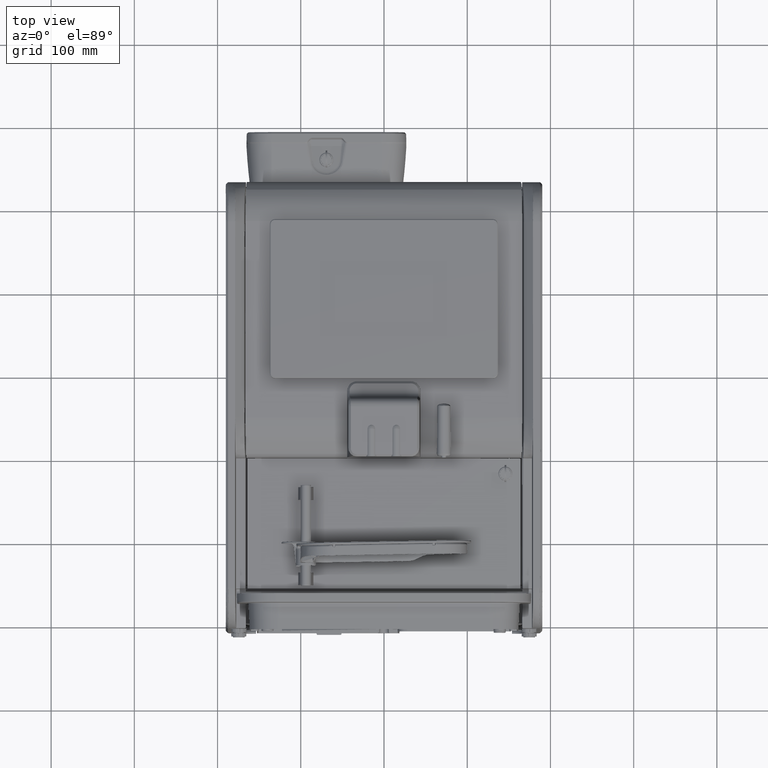
[diagram: clean part render]
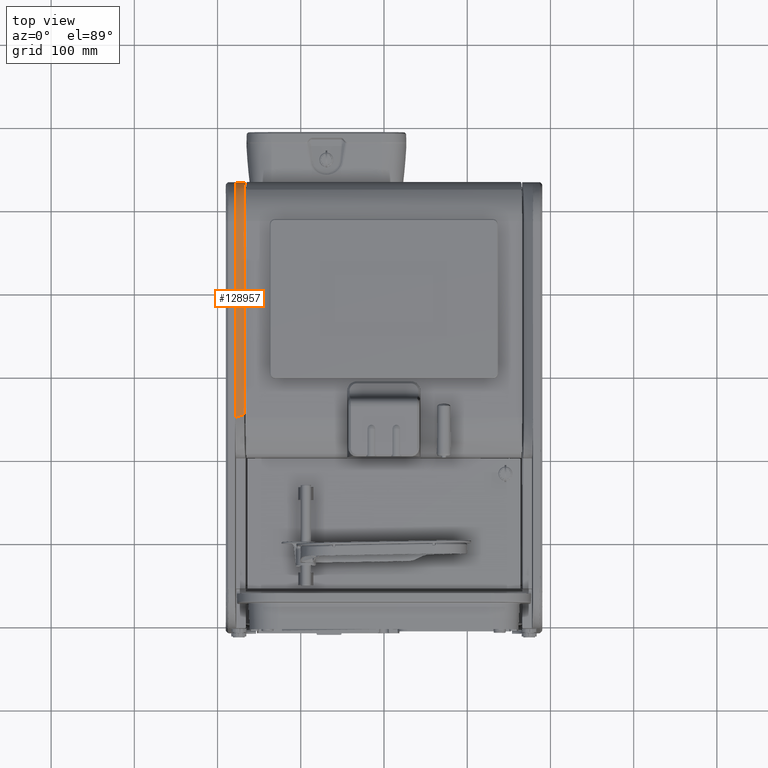
[diagram: same view with one face highlighted and labeled with its STEP entity id]
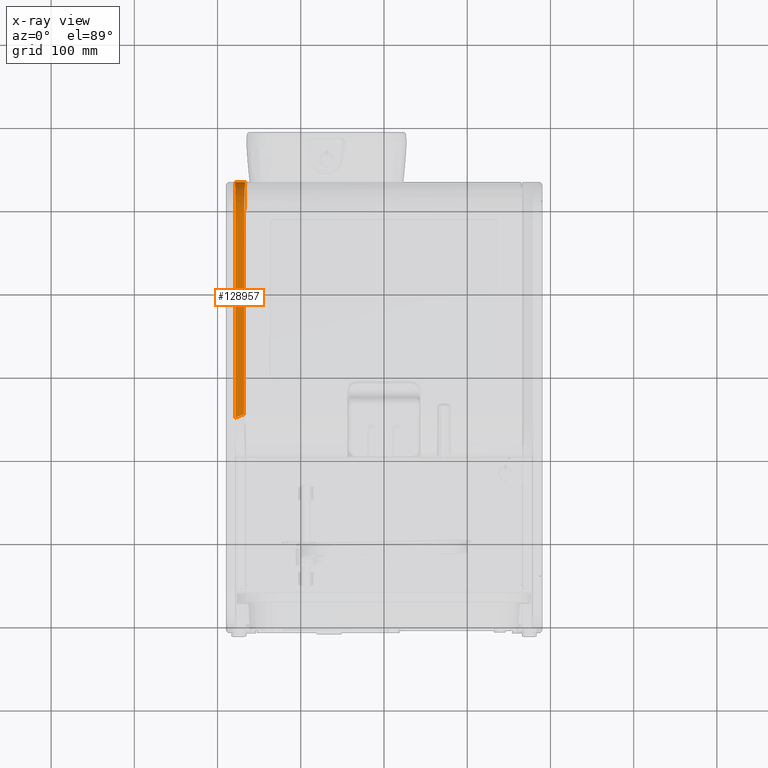
[diagram: x-ray of the same camera — body ghosted, the highlighted face saturated]
A machine part, top view. The second image highlights one B-rep face of the part: STEP entity #128957.
The next image is the same camera in x-ray: the body ghosted, the highlighted face saturated — about 0% of this face is hidden behind the body in this view.
In plain terms, the highlighted face is a freeform B-spline surface patch.
Its self-contained STEP definition (entity closure, byte-faithful):
#1035=B_SPLINE_SURFACE_WITH_KNOTS('',3,3,((#228662,#228663,#228664,#228665),
(#228666,#228667,#228668,#228669),(#228670,#228671,#228672,#228673),(#228674,
#228675,#228676,#228677),(#228678,#228679,#228680,#228681),(#228682,#228683,
#228684,#228685),(#228686,#228687,#228688,#228689),(#228690,#228691,#228692,
#228693),(#228694,#228695,#228696,#228697),(#228698,#228699,#228700,#228701),
(#228702,#228703,#228704,#228705),(#228706,#228707,#228708,#228709),(#228710,
#228711,#228712,#228713),(#228714,#228715,#228716,#228717),(#228718,#228719,
#228720,#228721),(#228722,#228723,#228724,#228725),(#228726,#228727,#228728,
#228729),(#228730,#228731,#228732,#228733),(#228734,#228735,#228736,#228737),
(#228738,#228739,#228740,#228741),(#228742,#228743,#228744,#228745)),
 .UNSPECIFIED.,.F.,.F.,.F.,(4,2,2,1,1,2,1,2,1,2,2,1,4),(4,4),(0.,0.00640979767275628,
0.00664625702827166,0.0475756343841297,0.0680403230620588,0.0885050117399878,
0.124391325861218,0.160277639982448,0.19466016174921,0.229042683515971,
0.24057875505389,0.620289377526945,1.),(0.0130425290265558,1.),
 .UNSPECIFIED.);
#3684=B_SPLINE_CURVE_WITH_KNOTS('',3,(#224887,#224888,#224889,#224890,#224891,
#224892,#224893),.UNSPECIFIED.,.F.,.F.,(4,3,4),(0.,0.5,0.999999999999467),
 .UNSPECIFIED.);
#3729=B_SPLINE_CURVE_WITH_KNOTS('',3,(#227127,#227128,#227129,#227130,#227131,
#227132,#227133,#227134,#227135,#227136,#227137,#227138,#227139,#227140,
#227141,#227142,#227143,#227144,#227145,#227146,#227147,#227148,#227149,
#227150,#227151,#227152,#227153,#227154,#227155,#227156,#227157,#227158,
#227159,#227160,#227161,#227162),.UNSPECIFIED.,.F.,.F.,(4,1,1,1,1,1,1,1,
1,1,1,1,1,1,1,1,1,1,1,1,1,1,1,1,1,1,1,1,1,1,1,1,1,4),(-23.5470437532574,
-22.3698930081718,-21.1927422630862,-20.0155915180006,-18.8384407729149,
-17.6612900278293,-16.4841392827437,-15.306988537658,-14.1298377925724,
-13.5412624200296,-12.9526870474868,-12.364111674944,-11.7755363024012,
-11.1869609298583,-10.5983855573155,-10.0098101847727,-9.42123481222989,
-8.83265943968708,-8.24408406714426,-7.65550869460145,-7.06693332205863,
-6.47835794951582,-5.889782576973,-5.30120720443019,-4.71263183188737,-4.12405645934456,
-3.53548108680174,-2.94690571425893,-2.35833034171611,-1.7697549691733,
-1.18117959663048,-0.592604224087667,-0.29831653781626,-0.00402896391941721),
 .UNSPECIFIED.);
#3730=B_SPLINE_CURVE_WITH_KNOTS('',3,(#227164,#227165,#227166,#227167,#227168,
#227169),.UNSPECIFIED.,.F.,.F.,(4,2,4),(-0.00402896391941721,-0.00402885154485234,
0.),.UNSPECIFIED.);
#3733=B_SPLINE_CURVE_WITH_KNOTS('',3,(#227427,#227428,#227429,#227430),
 .UNSPECIFIED.,.F.,.F.,(4,4),(-29.9484850807096,-29.7553266588214),
 .UNSPECIFIED.);
#3734=B_SPLINE_CURVE_WITH_KNOTS('',3,(#227432,#227433,#227434,#227435,#227436,
#227437),.UNSPECIFIED.,.F.,.F.,(4,2,4),(-29.7553266588214,-29.7552884234636,
-29.7482023152223),.UNSPECIFIED.);
#3735=B_SPLINE_CURVE_WITH_KNOTS('',3,(#227439,#227440,#227441,#227442,#227443,
#227444,#227445,#227446,#227447,#227448,#227449,#227450,#227451),
 .UNSPECIFIED.,.F.,.F.,(4,2,1,1,1,1,1,2,4),(-29.7482023152223,-29.7481639394166,
-29.4495624080321,-29.1509608766476,-28.8523593452632,-28.5537578138787,
-27.9565547511097,-27.3593516883408,-27.3590389645918),.UNSPECIFIED.);
#3736=B_SPLINE_CURVE_WITH_KNOTS('',3,(#227453,#227454,#227455,#227456,#227457,
#227458,#227459,#227460,#227461,#227462,#227463,#227464),.UNSPECIFIED.,
 .F.,.F.,(4,1,1,1,2,1,2,4),(-27.3590389645918,-26.8269412955744,-26.2945309028081,
-25.7621205100418,-25.2297101172754,-24.2090213257002,-23.1883325341249,
-23.1880105102883),.UNSPECIFIED.);
#3737=B_SPLINE_CURVE_WITH_KNOTS('',3,(#227466,#227467,#227468,#227469,#227470,
#227471),.UNSPECIFIED.,.F.,.F.,(4,2,4),(-23.1880105102883,-22.8446237925314,
-22.8444707547014),.UNSPECIFIED.);
#3738=B_SPLINE_CURVE_WITH_KNOTS('',3,(#227472,#227473,#227474,#227475,#227476,
#227477,#227478,#227479,#227480,#227481,#227482,#227483,#227484),
 .UNSPECIFIED.,.F.,.F.,(4,1,1,1,1,1,1,1,1,1,4),(-22.8444707547014,-21.4168348054981,
-19.9890458184649,-17.1334678443985,-15.7056788573653,-14.2778898703321,
-11.4223118962657,-8.56673392219925,-5.71115594813283,-2.85557797406642,
2.66496083731959E-15),.UNSPECIFIED.);
#3763=B_SPLINE_CURVE_WITH_KNOTS('',3,(#228748,#228749,#228750,#228751,#228752,
#228753,#228754,#228755,#228756,#228757,#228758,#228759,#228760,#228761,
#228762,#228763,#228764,#228765,#228766,#228767,#228768),.UNSPECIFIED.,
 .F.,.F.,(4,2,3,2,2,2,2,2,2,4),(-0.019908409667003,0.0398143192698491,0.0796336385396981,
0.129406829953857,0.154293425660937,0.166736723514476,0.175227518406058,
0.177203769887037,0.178191895627526,0.179175682312666),.UNSPECIFIED.);
#3764=B_SPLINE_CURVE_WITH_KNOTS('',3,(#228770,#228771,#228772,#228773,#228774,
#228775,#228776,#228777,#228778,#228779,#228780,#228781,#228782),
 .UNSPECIFIED.,.F.,.F.,(4,2,1,1,1,1,1,2,4),(-2.52953599760719,-2.52953324064174,
-2.02362659251339,-1.51771994438505,-1.26476662032087,-1.0118132962567,
-0.505906648128348,0.,0.09217482785171),.UNSPECIFIED.);
#3765=B_SPLINE_CURVE_WITH_KNOTS('',3,(#228784,#228785,#228786,#228787,#228788,
#228789,#228790,#228791,#228792,#228793),.UNSPECIFIED.,.F.,.F.,(4,2,1,1,
1,1,4),(-4.81362181208809,-4.81362166799849,-4.48732332123324,-4.16102497446799,
-3.83472662770274,-3.18212993417224,-2.52953599760719),.UNSPECIFIED.);
#3766=B_SPLINE_CURVE_WITH_KNOTS('',3,(#228795,#228796,#228797,#228798,#228799,
#228800,#228801,#228802,#228803,#228804,#228805,#228806,#228807),
 .UNSPECIFIED.,.F.,.F.,(4,2,1,1,1,1,1,2,4),(-6.9212356305075,-6.92123245339372,
-6.62035380637753,-6.01859651234513,-5.86815718883703,-5.71771786532893,
-5.41683921831273,-4.81508192428034,-4.8136218120881),.UNSPECIFIED.);
#3767=B_SPLINE_CURVE_WITH_KNOTS('',3,(#228808,#228809,#228810,#228811,#228812),
 .UNSPECIFIED.,.F.,.F.,(4,1,4),(-7.27096029927227,-7.12107693675289,-6.9212356305075),
 .UNSPECIFIED.);
#24726=FACE_OUTER_BOUND('',#30696,.T.);
#30696=EDGE_LOOP('',(#105980,#105981,#105982,#105983,#105984,#105985,#105986,
#105987,#105988,#105989,#105990,#105991,#105992,#105993,#105994,#105995));
#38682=LINE('',#227614,#48541);
#38746=LINE('',#228813,#48605);
#48541=VECTOR('',#158158,15.803879667573);
#48605=VECTOR('',#158296,10.);
#59977=VERTEX_POINT('',#224851);
#59978=VERTEX_POINT('',#224886);
#60144=VERTEX_POINT('',#227126);
#60145=VERTEX_POINT('',#227163);
#60147=VERTEX_POINT('',#227380);
#60148=VERTEX_POINT('',#227382);
#60149=VERTEX_POINT('',#227426);
#60150=VERTEX_POINT('',#227431);
#60151=VERTEX_POINT('',#227438);
#60152=VERTEX_POINT('',#227452);
#60153=VERTEX_POINT('',#227465);
#60229=VERTEX_POINT('',#228746);
#60230=VERTEX_POINT('',#228747);
#60231=VERTEX_POINT('',#228769);
#60232=VERTEX_POINT('',#228783);
#60233=VERTEX_POINT('',#228794);
#78274=EDGE_CURVE('',#59977,#59978,#3684,.T.);
#78467=EDGE_CURVE('',#59978,#60144,#3729,.T.);
#78468=EDGE_CURVE('',#60144,#60145,#3730,.T.);
#78473=EDGE_CURVE('',#60148,#60149,#3733,.T.);
#78474=EDGE_CURVE('',#60149,#60150,#3734,.T.);
#78475=EDGE_CURVE('',#60150,#60151,#3735,.T.);
#78476=EDGE_CURVE('',#60151,#60152,#3736,.T.);
#78477=EDGE_CURVE('',#60152,#60153,#3737,.T.);
#78478=EDGE_CURVE('',#60153,#60147,#3738,.T.);
#78485=EDGE_CURVE('',#60147,#59977,#38682,.T.);
#78590=EDGE_CURVE('',#60229,#60230,#3763,.T.);
#78591=EDGE_CURVE('',#60231,#60230,#3764,.T.);
#78592=EDGE_CURVE('',#60232,#60231,#3765,.T.);
#78593=EDGE_CURVE('',#60233,#60232,#3766,.T.);
#78594=EDGE_CURVE('',#60145,#60233,#3767,.T.);
#78595=EDGE_CURVE('',#60148,#60229,#38746,.T.);
#105980=ORIENTED_EDGE('',*,*,#78590,.T.);
#105981=ORIENTED_EDGE('',*,*,#78591,.F.);
#105982=ORIENTED_EDGE('',*,*,#78592,.F.);
#105983=ORIENTED_EDGE('',*,*,#78593,.F.);
#105984=ORIENTED_EDGE('',*,*,#78594,.F.);
#105985=ORIENTED_EDGE('',*,*,#78468,.F.);
#105986=ORIENTED_EDGE('',*,*,#78467,.F.);
#105987=ORIENTED_EDGE('',*,*,#78274,.F.);
#105988=ORIENTED_EDGE('',*,*,#78485,.F.);
#105989=ORIENTED_EDGE('',*,*,#78478,.F.);
#105990=ORIENTED_EDGE('',*,*,#78477,.F.);
#105991=ORIENTED_EDGE('',*,*,#78476,.F.);
#105992=ORIENTED_EDGE('',*,*,#78475,.F.);
#105993=ORIENTED_EDGE('',*,*,#78474,.F.);
#105994=ORIENTED_EDGE('',*,*,#78473,.F.);
#105995=ORIENTED_EDGE('',*,*,#78595,.T.);
#128957=ADVANCED_FACE('',(#24726),#1035,.F.);
#158158=DIRECTION('',(-0.691562996134251,-0.283406433371221,0.664395526701996));
#158296=DIRECTION('',(-1.,1.42152762704414E-14,1.77608424315041E-14));
#224851=CARTESIAN_POINT('',(-178.704057109713,244.788232730246,215.869631593567));
#224886=CARTESIAN_POINT('',(-178.704863108679,245.129227528072,215.870405929542));
#224887=CARTESIAN_POINT('Ctrl Pts',(-178.704057109713,244.788232730246,
215.869631593567));
#224888=CARTESIAN_POINT('Ctrl Pts',(-178.704144375693,244.804885353529,
215.869715431346));
#224889=CARTESIAN_POINT('Ctrl Pts',(-178.704479359027,244.889346295681,
215.870037254946));
#224890=CARTESIAN_POINT('Ctrl Pts',(-178.704638032335,244.958729121707,
215.870189694582));
#224891=CARTESIAN_POINT('Ctrl Pts',(-178.704796705642,245.028111947734,
215.870342134218));
#224892=CARTESIAN_POINT('Ctrl Pts',(-178.704863108671,245.112574467406,
215.870405928069));
#224893=CARTESIAN_POINT('Ctrl Pts',(-178.70486310867,245.12922753061,215.870405927943));
#227126=CARTESIAN_POINT('',(-178.704863108675,480.559376547243,215.870405929545));
#227127=CARTESIAN_POINT('Ctrl Pts',(-178.704863108679,245.129227528072,
215.870405929543));
#227128=CARTESIAN_POINT('Ctrl Pts',(-178.704863108679,249.053063345024,
215.870405929543));
#227129=CARTESIAN_POINT('Ctrl Pts',(-178.704863108678,256.900734978936,
215.870405929542));
#227130=CARTESIAN_POINT('Ctrl Pts',(-178.704863108687,268.672242429728,
215.870405929551));
#227131=CARTESIAN_POINT('Ctrl Pts',(-178.70486310868,280.443749880628,215.870405929545));
#227132=CARTESIAN_POINT('Ctrl Pts',(-178.704863108732,292.215257331122,
215.870405929595));
#227133=CARTESIAN_POINT('Ctrl Pts',(-178.704863108736,303.986764781955,
215.870405929598));
#227134=CARTESIAN_POINT('Ctrl Pts',(-178.704863108965,315.758272231221,
215.870405929819));
#227135=CARTESIAN_POINT('Ctrl Pts',(-178.704863109332,327.529779679533,
215.870405930172));
#227136=CARTESIAN_POINT('Ctrl Pts',(-178.704863111142,337.339369209374,
215.870405931911));
#227137=CARTESIAN_POINT('Ctrl Pts',(-178.704863112565,345.187040833422,
215.870405933278));
#227138=CARTESIAN_POINT('Ctrl Pts',(-178.704863114989,351.072794542054,
215.870405935607));
#227139=CARTESIAN_POINT('Ctrl Pts',(-178.704863119276,356.958548237787,
215.870405939726));
#227140=CARTESIAN_POINT('Ctrl Pts',(-178.704863126628,362.844301912277,
215.87040594679));
#227141=CARTESIAN_POINT('Ctrl Pts',(-178.704863139665,368.730055547393,
215.870405959315));
#227142=CARTESIAN_POINT('Ctrl Pts',(-178.704863161254,374.615809123265,
215.870405980055));
#227143=CARTESIAN_POINT('Ctrl Pts',(-178.704863200208,380.501562578836,
215.87040601748));
#227144=CARTESIAN_POINT('Ctrl Pts',(-178.704863262932,386.387315869745,
215.870406077739));
#227145=CARTESIAN_POINT('Ctrl Pts',(-178.704863379915,392.273068784773,
215.870406190127));
#227146=CARTESIAN_POINT('Ctrl Pts',(-178.70486356009,398.158821262035,215.870406363224));
#227147=CARTESIAN_POINT('Ctrl Pts',(-178.704863915469,404.044572525578,
215.870406704642));
#227148=CARTESIAN_POINT('Ctrl Pts',(-178.704864423127,409.930322734198,
215.870407192358));
#227149=CARTESIAN_POINT('Ctrl Pts',(-178.704865522908,415.81606884089,215.870408248935));
#227150=CARTESIAN_POINT('Ctrl Pts',(-178.704866903087,421.701813005122,
215.870409574895));
#227151=CARTESIAN_POINT('Ctrl Pts',(-178.704870403785,427.587542479449,
215.870412938072));
#227152=CARTESIAN_POINT('Ctrl Pts',(-178.704873895883,433.473272013351,
215.870416292986));
#227153=CARTESIAN_POINT('Ctrl Pts',(-178.704885498039,439.358945364786,
215.870427439363));
#227154=CARTESIAN_POINT('Ctrl Pts',(-178.704892935187,445.244647569358,
215.870434584349));
#227155=CARTESIAN_POINT('Ctrl Pts',(-178.704933495144,451.130120315471,
215.870473550947));
#227156=CARTESIAN_POINT('Ctrl Pts',(-178.704941257093,457.015820270032,
215.870481007975));
#227157=CARTESIAN_POINT('Ctrl Pts',(-178.705092365398,462.900527191862,
215.870626180132));
#227158=CARTESIAN_POINT('Ctrl Pts',(-178.705044477665,468.786612660122,
215.870580173624));
#227159=CARTESIAN_POINT('Ctrl Pts',(-178.7055579148,473.68785059264,215.871073440862));
#227160=CARTESIAN_POINT('Ctrl Pts',(-178.705236418162,477.613913205408,
215.870764573918));
#227161=CARTESIAN_POINT('Ctrl Pts',(-178.706103791346,479.569822005912,
215.871597873159));
#227162=CARTESIAN_POINT('Ctrl Pts',(-178.704862946448,480.559376547244,
215.870405773691));
#227163=CARTESIAN_POINT('',(-178.704832200942,480.60002861091,215.87035573248));
#227164=CARTESIAN_POINT('Ctrl Pts',(-178.704862946448,480.559376547244,
215.870405773691));
#227165=CARTESIAN_POINT('Ctrl Pts',(-178.704862945974,480.559376925108,
215.870405773236));
#227166=CARTESIAN_POINT('Ctrl Pts',(-178.7048629455,480.559377302972,215.87040577278));
#227167=CARTESIAN_POINT('Ctrl Pts',(-178.704845957611,480.572924866419,
215.870389452245));
#227168=CARTESIAN_POINT('Ctrl Pts',(-178.704835306301,480.586477995898,
215.870372381563));
#227169=CARTESIAN_POINT('Ctrl Pts',(-178.704832200942,480.60002861091,215.87035573248));
#227380=CARTESIAN_POINT('',(-168.063189334919,249.14892062258,205.64678134085));
#227382=CARTESIAN_POINT('',(-166.349999331759,528.599665057152,166.00000000001));
#227426=CARTESIAN_POINT('',(-166.451074430603,528.549094238294,167.928680734795));
#227427=CARTESIAN_POINT('Ctrl Pts',(-166.349999328262,528.599665060971,
166.000000000293));
#227428=CARTESIAN_POINT('Ctrl Pts',(-166.383683976709,528.582811807863,
166.642764147492));
#227429=CARTESIAN_POINT('Ctrl Pts',(-166.417369030729,528.565967851802,
167.285844166911));
#227430=CARTESIAN_POINT('Ctrl Pts',(-166.451051709688,528.549116382449,
167.928682505761));
#227431=CARTESIAN_POINT('',(-166.454803597735,528.547226511587,167.9998316044));
#227432=CARTESIAN_POINT('Ctrl Pts',(-166.451051709688,528.549116382449,
167.928682505761));
#227433=CARTESIAN_POINT('Ctrl Pts',(-166.451058377113,528.549113046731,
167.928809754439));
#227434=CARTESIAN_POINT('Ctrl Pts',(-166.451065044538,528.549109711013,
167.928937003108));
#227435=CARTESIAN_POINT('Ctrl Pts',(-166.452307376967,528.548488171047,
167.952647077347));
#227436=CARTESIAN_POINT('Ctrl Pts',(-166.453543801787,528.547868626396,
167.976234210158));
#227437=CARTESIAN_POINT('Ctrl Pts',(-166.454780743477,528.547248900224,
167.999833391299));
#227438=CARTESIAN_POINT('',(-167.437832733607,519.161619566678,189.898449273287));
#227439=CARTESIAN_POINT('Ctrl Pts',(-166.454780743477,528.547248900224,
167.999833391299));
#227440=CARTESIAN_POINT('Ctrl Pts',(-166.454787442307,528.54724554401,167.99996119595));
#227441=CARTESIAN_POINT('Ctrl Pts',(-166.454794141152,528.547242187792,
168.000089000954));
#227442=CARTESIAN_POINT('Ctrl Pts',(-166.506924564336,528.521124107549,
168.994668263045));
#227443=CARTESIAN_POINT('Ctrl Pts',(-166.609724637073,528.372248774383,
171.028275608575));
#227444=CARTESIAN_POINT('Ctrl Pts',(-166.758408055662,527.860199820874,
174.04097745219));
#227445=CARTESIAN_POINT('Ctrl Pts',(-166.899164266379,527.062340060623,
177.004894086534));
#227446=CARTESIAN_POINT('Ctrl Pts',(-167.073118444276,525.638144789433,
180.812310772883));
#227447=CARTESIAN_POINT('Ctrl Pts',(-167.263300769845,523.213583515418,
185.275619543512));
#227448=CARTESIAN_POINT('Ctrl Pts',(-167.385412855238,520.59929815328,188.457618935411));
#227449=CARTESIAN_POINT('Ctrl Pts',(-167.438223807283,519.163124905424,
189.896919353846));
#227450=CARTESIAN_POINT('Ctrl Pts',(-167.438251446813,519.162373235928,
189.897672615928));
#227451=CARTESIAN_POINT('Ctrl Pts',(-167.438279086035,519.16162155152,189.898425848833));
#227452=CARTESIAN_POINT('',(-168.06575450433,481.076387628263,205.647143174075));
#227453=CARTESIAN_POINT('Ctrl Pts',(-167.438279086035,519.16162155152,189.898425848833));
#227454=CARTESIAN_POINT('Ctrl Pts',(-167.485307064965,517.882634832968,
191.18004732471));
#227455=CARTESIAN_POINT('Ctrl Pts',(-167.577610680026,515.237537647647,
193.575047962946));
#227456=CARTESIAN_POINT('Ctrl Pts',(-167.703994869288,510.868359548347,
196.793185202379));
#227457=CARTESIAN_POINT('Ctrl Pts',(-167.816229619734,506.198725139299,
199.54835708437));
#227458=CARTESIAN_POINT('Ctrl Pts',(-167.879117167557,502.926261980514,
201.060128934758));
#227459=CARTESIAN_POINT('Ctrl Pts',(-167.960988027286,498.080790989393,
203.011415485934));
#227460=CARTESIAN_POINT('Ctrl Pts',(-168.042231424483,491.498999735271,
204.965003962275));
#227461=CARTESIAN_POINT('Ctrl Pts',(-168.067742343064,484.542851785266,
205.646036037543));
#227462=CARTESIAN_POINT('Ctrl Pts',(-168.065428764704,481.078573222401,
205.647491206893));
#227463=CARTESIAN_POINT('Ctrl Pts',(-168.06542803432,481.077480610663,205.647491664787));
#227464=CARTESIAN_POINT('Ctrl Pts',(-168.065427303251,481.076388010542,
205.647492121622));
#227465=CARTESIAN_POINT('',(-168.063189334916,477.605357238961,205.646781340852));
#227466=CARTESIAN_POINT('Ctrl Pts',(-168.065427303251,481.076388010542,
205.647492121622));
#227467=CARTESIAN_POINT('Ctrl Pts',(-168.064647735177,479.911305408845,
205.647979262385));
#227468=CARTESIAN_POINT('Ctrl Pts',(-168.063088438904,478.759432045042,
205.647261139811));
#227469=CARTESIAN_POINT('Ctrl Pts',(-168.063187551741,477.606384704289,
205.647321194748));
#227470=CARTESIAN_POINT('Ctrl Pts',(-168.063187595885,477.605871052881,
205.647321221493));
#227471=CARTESIAN_POINT('Ctrl Pts',(-168.063187640023,477.605357402009,
205.647321248231));
#227472=CARTESIAN_POINT('Ctrl Pts',(-168.063187640023,477.605357402009,
205.647321248231));
#227473=CARTESIAN_POINT('Ctrl Pts',(-168.063599379383,472.813689543326,
205.647570674316));
#227474=CARTESIAN_POINT('Ctrl Pts',(-168.063113823113,463.322972863929,
205.646744180123));
#227475=CARTESIAN_POINT('Ctrl Pts',(-168.063291188531,444.273980854372,
205.646937880156));
#227476=CARTESIAN_POINT('Ctrl Pts',(-168.06315041314,425.245318613828,205.646725786019));
#227477=CARTESIAN_POINT('Ctrl Pts',(-168.063200627822,406.205016467491,
205.646797938764));
#227478=CARTESIAN_POINT('Ctrl Pts',(-168.063181612448,387.168999876785,
205.646770152215));
#227479=CARTESIAN_POINT('Ctrl Pts',(-168.063193774351,363.371765569001,
205.646787786797));
#227480=CARTESIAN_POINT('Ctrl Pts',(-168.063187177697,334.816393008105,
205.646778209222));
#227481=CARTESIAN_POINT('Ctrl Pts',(-168.063190412022,306.260413616039,
205.646782904521));
#227482=CARTESIAN_POINT('Ctrl Pts',(-168.063188755182,277.704736149467,
205.646780499228));
#227483=CARTESIAN_POINT('Ctrl Pts',(-168.063189334919,258.667513869468,
205.64678134085));
#227484=CARTESIAN_POINT('Ctrl Pts',(-168.063189334919,249.14892062258,205.64678134085));
#227614=CARTESIAN_POINT('',(-167.920621626539,249.20734567709,205.509814284733));
#228662=CARTESIAN_POINT('Ctrl Pts',(-166.019552877333,528.599665057152,
166.00000000001));
#228663=CARTESIAN_POINT('Ctrl Pts',(-170.296368584885,528.599665057152,
166.00000000001));
#228664=CARTESIAN_POINT('Ctrl Pts',(-174.573184292436,528.599665057152,
166.00000000001));
#228665=CARTESIAN_POINT('Ctrl Pts',(-178.849999999988,528.599665057152,
166.00000000001));
#228666=CARTESIAN_POINT('Ctrl Pts',(-166.052763309875,528.58282188791,166.642345037264));
#228667=CARTESIAN_POINT('Ctrl Pts',(-170.318508870881,528.582652925792,
166.649356414026));
#228668=CARTESIAN_POINT('Ctrl Pts',(-174.584254438982,528.582462638874,
166.656374876449));
#228669=CARTESIAN_POINT('Ctrl Pts',(-178.849999999988,528.582293676756,
166.663386253211));
#228670=CARTESIAN_POINT('Ctrl Pts',(-166.085973750198,528.565978906757,
167.284690253638));
#228671=CARTESIAN_POINT('Ctrl Pts',(-170.340649174167,528.565612398326,
167.298722505717));
#228672=CARTESIAN_POINT('Ctrl Pts',(-174.595324576065,528.565285670211,
167.312742662975));
#228673=CARTESIAN_POINT('Ctrl Pts',(-178.850000000034,528.56491916178,167.326774915054));
#228674=CARTESIAN_POINT('Ctrl Pts',(-166.120409328377,528.548514710174,
167.950731547281));
#228675=CARTESIAN_POINT('Ctrl Pts',(-170.363606218244,528.547992667616,
167.972027292361));
#228676=CARTESIAN_POINT('Ctrl Pts',(-174.606803110174,528.547447322638,
167.993330398272));
#228677=CARTESIAN_POINT('Ctrl Pts',(-178.850000000041,528.54692528008,168.014626143352));
#228678=CARTESIAN_POINT('Ctrl Pts',(-166.12163447072,528.547893040304,167.974427922937));
#228679=CARTESIAN_POINT('Ctrl Pts',(-170.364422999283,528.547298358751,
167.99600393641));
#228680=CARTESIAN_POINT('Ctrl Pts',(-174.607211471479,528.546855593708,
168.017529059627));
#228681=CARTESIAN_POINT('Ctrl Pts',(-178.850000000041,528.546260912154,
168.0391050731));
#228682=CARTESIAN_POINT('Ctrl Pts',(-166.334922935999,528.439656328892,
172.099794181526));
#228683=CARTESIAN_POINT('Ctrl Pts',(-170.506615098439,528.437227037293,
172.166334323743));
#228684=CARTESIAN_POINT('Ctrl Pts',(-174.678307837602,528.431961692285,
172.234000622069));
#228685=CARTESIAN_POINT('Ctrl Pts',(-178.850000000042,528.429532400686,
172.300540764286));
#228686=CARTESIAN_POINT('Ctrl Pts',(-166.645617342822,527.087244955635,
178.113667700844));
#228687=CARTESIAN_POINT('Ctrl Pts',(-170.713745360552,527.195226062197,
178.360241924237));
#228688=CARTESIAN_POINT('Ctrl Pts',(-174.781871982307,527.302918270126,
178.607225833458));
#228689=CARTESIAN_POINT('Ctrl Pts',(-178.850000000037,527.410899376688,
178.85380005685));
#228690=CARTESIAN_POINT('Ctrl Pts',(-167.013047989067,523.186552424874,
185.234610359314));
#228691=CARTESIAN_POINT('Ctrl Pts',(-170.958698276276,523.536053088188,
185.917452103762));
#228692=CARTESIAN_POINT('Ctrl Pts',(-174.904349712826,523.88335505943,186.600939487016));
#228693=CARTESIAN_POINT('Ctrl Pts',(-178.850000000035,524.232855722745,
187.283781231464));
#228694=CARTESIAN_POINT('Ctrl Pts',(-167.17581558128,520.58515991623,188.392366832646));
#228695=CARTESIAN_POINT('Ctrl Pts',(-171.067211581819,521.080261139505,
189.350559555006));
#228696=CARTESIAN_POINT('Ctrl Pts',(-174.958603999493,521.574257199887,
190.309922976198));
#228697=CARTESIAN_POINT('Ctrl Pts',(-178.850000000032,522.069358423162,
191.268115698559));
#228698=CARTESIAN_POINT('Ctrl Pts',(-167.381818136191,516.588748767675,
192.391600671397));
#228699=CARTESIAN_POINT('Ctrl Pts',(-171.204542896823,517.303447411115,
193.767229672495));
#228700=CARTESIAN_POINT('Ctrl Pts',(-175.027275239398,518.015715585319,
195.142306750351));
#228701=CARTESIAN_POINT('Ctrl Pts',(-178.850000000029,518.730414228759,
196.517935751449));
#228702=CARTESIAN_POINT('Ctrl Pts',(-167.617723633035,510.985949399466,
196.973131920743));
#228703=CARTESIAN_POINT('Ctrl Pts',(-171.361810574234,511.880969122414,
198.870724157843));
#228704=CARTESIAN_POINT('Ctrl Pts',(-175.105913058826,512.774023248668,
200.768401032141));
#228705=CARTESIAN_POINT('Ctrl Pts',(-178.850000000026,513.669042971616,
202.665993269241));
#228706=CARTESIAN_POINT('Ctrl Pts',(-167.791374076602,504.585860023903,
200.346908802396));
#228707=CARTESIAN_POINT('Ctrl Pts',(-171.477581640833,505.560760494681,
202.662020867652));
#228708=CARTESIAN_POINT('Ctrl Pts',(-175.163792435793,506.533901409871,
204.976443617553));
#228709=CARTESIAN_POINT('Ctrl Pts',(-178.850000000024,507.508801880649,
207.291555682809));
#228710=CARTESIAN_POINT('Ctrl Pts',(-167.927490881385,498.056175870614,
202.99240341484));
#228711=CARTESIAN_POINT('Ctrl Pts',(-171.568327029704,499.119586074185,
205.657515713232));
#228712=CARTESIAN_POINT('Ctrl Pts',(-175.209163851702,500.180826183277,
208.324442042469));
#228713=CARTESIAN_POINT('Ctrl Pts',(-178.850000000022,501.244236386848,
210.989554340862));
#228714=CARTESIAN_POINT('Ctrl Pts',(-168.028921253828,491.416960418696,
204.967256751501));
#228715=CARTESIAN_POINT('Ctrl Pts',(-171.635943120584,492.517671931317,
207.982862550417));
#228716=CARTESIAN_POINT('Ctrl Pts',(-175.242978133265,493.616929880752,
210.998403052401));
#228717=CARTESIAN_POINT('Ctrl Pts',(-178.85000000002,494.717641393374,214.014008851318));
#228718=CARTESIAN_POINT('Ctrl Pts',(-168.063173655884,484.523068816039,
205.640741498318));
#228719=CARTESIAN_POINT('Ctrl Pts',(-171.658779929945,485.587633849651,
208.940188246247));
#228720=CARTESIAN_POINT('Ctrl Pts',(-175.254393725958,486.65027263322,212.241105097192));
#228721=CARTESIAN_POINT('Ctrl Pts',(-178.850000000019,487.714837666831,
215.540551845122));
#228722=CARTESIAN_POINT('Ctrl Pts',(-168.063172631938,479.918829760031,
205.646151369819));
#228723=CARTESIAN_POINT('Ctrl Pts',(-171.658784076834,480.941443156024,
209.082890686466));
#228724=CARTESIAN_POINT('Ctrl Pts',(-175.254388555123,481.962386428689,
212.52009755442));
#228725=CARTESIAN_POINT('Ctrl Pts',(-178.850000000019,482.984999824681,
215.956836871067));
#228726=CARTESIAN_POINT('Ctrl Pts',(-168.063172834923,478.762051317586,
205.646856340397));
#228727=CARTESIAN_POINT('Ctrl Pts',(-171.658783235185,479.772673390045,
209.101205856709));
#228728=CARTESIAN_POINT('Ctrl Pts',(-175.254389599757,480.781563279042,
212.556242067547));
#228729=CARTESIAN_POINT('Ctrl Pts',(-178.850000000019,481.792185351502,
216.010591583858));
#228730=CARTESIAN_POINT('Ctrl Pts',(-168.063170909967,439.529214009969,
205.646816705977));
#228731=CARTESIAN_POINT('Ctrl Pts',(-171.658781512948,440.115383243,209.101180818963));
#228732=CARTESIAN_POINT('Ctrl Pts',(-175.254389397029,440.700342624064,
212.55600479786));
#228733=CARTESIAN_POINT('Ctrl Pts',(-178.85000000001,441.286511857095,216.010368910846));
#228734=CARTESIAN_POINT('Ctrl Pts',(-168.063168092957,363.377150073949,
205.646755040644));
#228735=CARTESIAN_POINT('Ctrl Pts',(-171.65877858832,363.13945242599,209.101111376851));
#228736=CARTESIAN_POINT('Ctrl Pts',(-175.254389504623,362.901933966546,
212.555405792285));
#228737=CARTESIAN_POINT('Ctrl Pts',(-178.849999999986,362.664236318587,
216.009762128493));
#228738=CARTESIAN_POINT('Ctrl Pts',(-168.063168361216,287.224999584248,
205.646761191083));
#228739=CARTESIAN_POINT('Ctrl Pts',(-171.658778932711,286.163431938171,
209.101123033497));
#228740=CARTESIAN_POINT('Ctrl Pts',(-175.254389428496,285.101865578164,
212.555479397991));
#228741=CARTESIAN_POINT('Ctrl Pts',(-178.84999999999,284.040297932088,216.009841240406));
#228742=CARTESIAN_POINT('Ctrl Pts',(-168.063168361217,249.148929217722,
205.646761191082));
#228743=CARTESIAN_POINT('Ctrl Pts',(-171.658778907475,247.675427647506,
209.101121207523));
#228744=CARTESIAN_POINT('Ctrl Pts',(-175.254389453733,246.201926077291,
212.555481223964));
#228745=CARTESIAN_POINT('Ctrl Pts',(-178.849999999991,244.728424507075,
216.009841240405));
#228746=CARTESIAN_POINT('',(-178.849999999988,528.599665057152,166.00000000001));
#228747=CARTESIAN_POINT('',(-178.850001337688,528.547550916152,167.990158752393));
#228748=CARTESIAN_POINT('Ctrl Pts',(-178.849999999432,528.599665057119,
166.0000000013));
#228749=CARTESIAN_POINT('Ctrl Pts',(-178.850000133738,528.594453861158,
166.199007546131));
#228750=CARTESIAN_POINT('Ctrl Pts',(-178.850000227964,528.589242665197,
166.398015090962));
#228751=CARTESIAN_POINT('Ctrl Pts',(-178.85000046661,528.580556975029,166.729708216405));
#228752=CARTESIAN_POINT('Ctrl Pts',(-178.850000573787,528.577082480822,
166.862393797017));
#228753=CARTESIAN_POINT('Ctrl Pts',(-178.849999995749,528.573607986614,
166.99507937763));
#228754=CARTESIAN_POINT('Ctrl Pts',(-178.850000776074,528.569264952419,
167.160933162244));
#228755=CARTESIAN_POINT('Ctrl Pts',(-178.850000901143,528.564921918223,
167.326786946859));
#228756=CARTESIAN_POINT('Ctrl Pts',(-178.850001067932,528.558407366929,
167.575567623782));
#228757=CARTESIAN_POINT('Ctrl Pts',(-178.850001114874,528.556235849831,
167.65849451609));
#228758=CARTESIAN_POINT('Ctrl Pts',(-178.850001199237,528.552978574184,
167.782884854551));
#228759=CARTESIAN_POINT('Ctrl Pts',(-178.850001231617,528.551892815635,
167.824348300705));
#228760=CARTESIAN_POINT('Ctrl Pts',(-178.850001278813,528.55006618009,167.894104697886));
#228761=CARTESIAN_POINT('Ctrl Pts',(-178.850001290774,528.549325303093,
167.922397648914));
#228762=CARTESIAN_POINT('Ctrl Pts',(-178.850001314521,528.54841198532,167.957275847504));
#228763=CARTESIAN_POINT('Ctrl Pts',(-178.850001320772,528.548239544544,
167.963861095068));
#228764=CARTESIAN_POINT('Ctrl Pts',(-178.850001327489,528.54798088338,167.973738966412));
#228765=CARTESIAN_POINT('Ctrl Pts',(-178.850001331708,528.547894662992,
167.977031590194));
#228766=CARTESIAN_POINT('Ctrl Pts',(-178.85000133617,528.547722600826,167.983602379196));
#228767=CARTESIAN_POINT('Ctrl Pts',(-178.850001335457,528.54763674065,167.986881247064));
#228768=CARTESIAN_POINT('Ctrl Pts',(-178.850001337688,528.547550916152,
167.990158752393));
#228769=CARTESIAN_POINT('',(-178.783886163972,520.848152445805,193.154945237093));
#228770=CARTESIAN_POINT('Ctrl Pts',(-178.783890484701,520.848153450854,
193.154945908298));
#228771=CARTESIAN_POINT('Ctrl Pts',(-178.783890526343,520.848158493189,
193.154938023096));
#228772=CARTESIAN_POINT('Ctrl Pts',(-178.783890567985,520.848163535523,
193.154930137892));
#228773=CARTESIAN_POINT('Ctrl Pts',(-178.791531944264,521.773442707055,
191.707977130799));
#228774=CARTESIAN_POINT('Ctrl Pts',(-178.806186497473,523.464836970186,
188.724760530702));
#228775=CARTESIAN_POINT('Ctrl Pts',(-178.821438004663,525.169295870215,
184.816491870962));
#228776=CARTESIAN_POINT('Ctrl Pts',(-178.831457912454,526.293180423581,
181.565224261449));
#228777=CARTESIAN_POINT('Ctrl Pts',(-178.839859113343,527.244538201445,
178.258298100024));
#228778=CARTESIAN_POINT('Ctrl Pts',(-178.847230397417,528.106636409428,
174.035729948586));
#228779=CARTESIAN_POINT('Ctrl Pts',(-178.849599570943,528.43761215891,170.62268422651));
#228780=CARTESIAN_POINT('Ctrl Pts',(-178.849974952685,528.528375465857,
168.610628843691));
#228781=CARTESIAN_POINT('Ctrl Pts',(-178.849979089518,528.539426069562,
168.300434122132));
#228782=CARTESIAN_POINT('Ctrl Pts',(-178.849999999988,528.547550915957,
167.99015875957));
#228783=CARTESIAN_POINT('',(-178.718402263376,504.274970135345,209.089597300782));
#228784=CARTESIAN_POINT('Ctrl Pts',(-178.718402477592,504.274970208674,
209.089597438584));
#228785=CARTESIAN_POINT('Ctrl Pts',(-178.71840247826,504.274970630274,209.089597191335));
#228786=CARTESIAN_POINT('Ctrl Pts',(-178.718402478927,504.274971051874,
209.089596944086));
#228787=CARTESIAN_POINT('Ctrl Pts',(-178.719913321567,505.229705592074,
208.529687924486));
#228788=CARTESIAN_POINT('Ctrl Pts',(-178.723279647602,507.100321990732,
207.346847267555));
#228789=CARTESIAN_POINT('Ctrl Pts',(-178.72956111247,509.780612625545,205.386700910229));
#228790=CARTESIAN_POINT('Ctrl Pts',(-178.739687599839,513.146142009228,
202.562212956615));
#228791=CARTESIAN_POINT('Ctrl Pts',(-178.756211950057,517.004247217591,
198.603122690042));
#228792=CARTESIAN_POINT('Ctrl Pts',(-178.774033558279,519.654595605354,
195.021431144736));
#228793=CARTESIAN_POINT('Ctrl Pts',(-178.783890484701,520.848153450854,
193.154945908299));
#228794=CARTESIAN_POINT('',(-178.704641767904,484.133323018592,215.713963276607));
#228795=CARTESIAN_POINT('Ctrl Pts',(-178.70463841269,484.133322735403,215.713960042644));
#228796=CARTESIAN_POINT('Ctrl Pts',(-178.704638413848,484.13333343089,215.713959114602));
#228797=CARTESIAN_POINT('Ctrl Pts',(-178.704638415005,484.133344126377,
215.713958186557));
#228798=CARTESIAN_POINT('Ctrl Pts',(-178.704748030814,485.146237513525,
215.626069208455));
#228799=CARTESIAN_POINT('Ctrl Pts',(-178.705258453844,488.180425980494,
215.251707871626));
#228800=CARTESIAN_POINT('Ctrl Pts',(-178.706538158693,491.66711396093,214.445354191647));
#228801=CARTESIAN_POINT('Ctrl Pts',(-178.708234865118,494.571389998994,
213.524913523608));
#228802=CARTESIAN_POINT('Ctrl Pts',(-178.709533919981,496.479294651242,
212.854369101477));
#228803=CARTESIAN_POINT('Ctrl Pts',(-178.712296292064,499.772021390571,
211.524958136601));
#228804=CARTESIAN_POINT('Ctrl Pts',(-178.715624793514,502.501682452241,
210.128911562973));
#228805=CARTESIAN_POINT('Ctrl Pts',(-178.71838909907,504.266426727363,209.094607124305));
#228806=CARTESIAN_POINT('Ctrl Pts',(-178.71839571694,504.270697987014,209.092102904986));
#228807=CARTESIAN_POINT('Ctrl Pts',(-178.718402477592,504.274970208675,
209.089597438584));
#228808=CARTESIAN_POINT('Ctrl Pts',(-178.704832200942,480.60002861091,215.87035573248));
#228809=CARTESIAN_POINT('Ctrl Pts',(-178.704716637329,481.104304691434,
215.869736149234));
#228810=CARTESIAN_POINT('Ctrl Pts',(-178.70454212256,482.28209514611,215.846306715661));
#228811=CARTESIAN_POINT('Ctrl Pts',(-178.704565609362,483.460573743333,
215.772334104189));
#228812=CARTESIAN_POINT('Ctrl Pts',(-178.70463841269,484.133322735403,215.713960042644));
#228813=CARTESIAN_POINT('',(-165.849999999988,528.599665057152,166.00000000001));